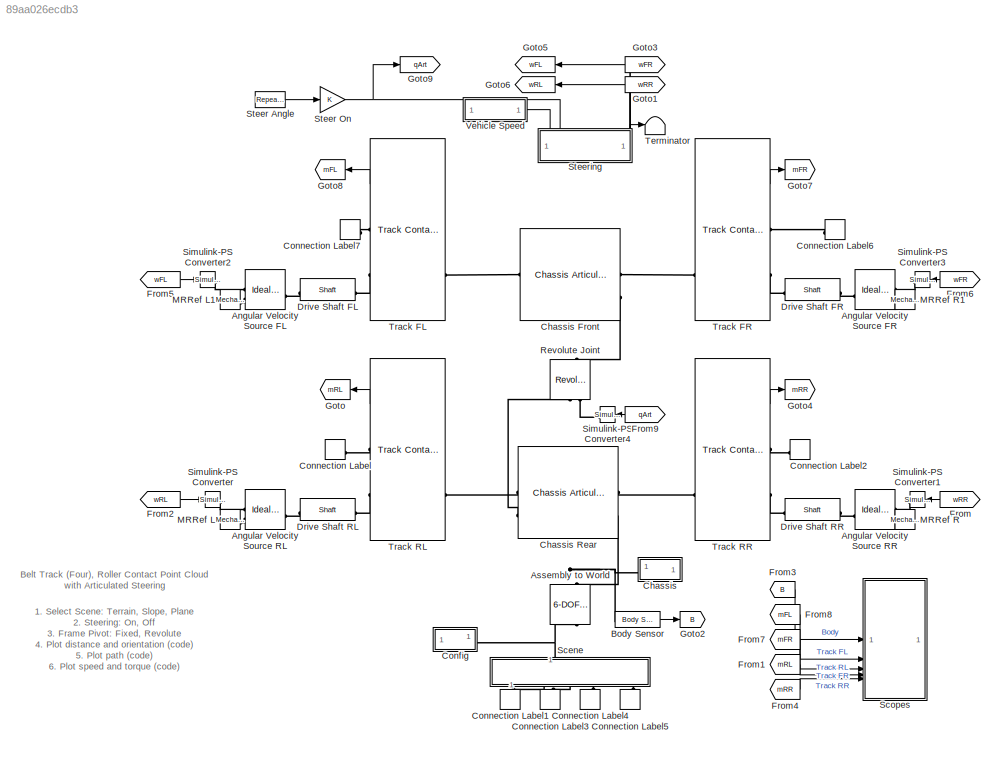
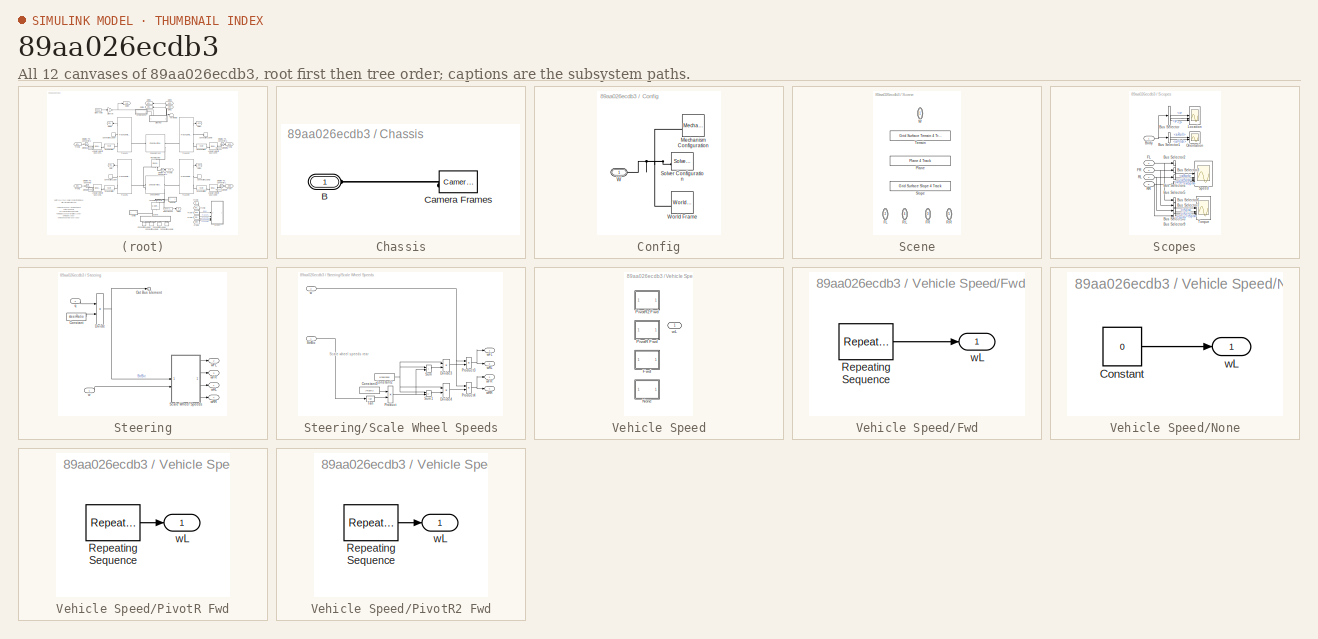
[diagram: thumbnail index - all 12 canvases of the model, root first then tree order]
MODEL slx_89aa026ecdb3
KIND model
CONFIG AbsTol = 1e-3
CONFIG EnableMultiTasking = on
CONFIG PostLoadFcn = set_param([bdroot '/Track FL'],'popup_sense_roller','Actuator Torque')\nset_param([bdroot '/Track FR'],'popup_sense_roller','Actuator Torque')\nset_param([bdroot '/Track RL'],'popup_sense_roller','Actuator Torque')\nset_param([bdroot '/Track RR'],'popup_sense_roller','Actuator Torque')
CONFIG SolverName = ode23t
CONFIG StartFcn = tic
CONFIG StopFcn = Elapsed_Sim_Time = toc;\ndisp(['Elapsed Sim Time = ' num2str(Elapsed_Sim_Time)]);
CONFIG StopTime = 14
BLOCK [Reference] Angular Velocity Source FL  REF=fl_lib/Mechanical/Mechanical Sources/Ideal Angular
Velocity Source
  SourceBlock = fl_lib/Mechanical/Mechanical Sources/Ideal Angular\nVelocity Source
  SourceType = Ideal Angular\nVelocity Source
BLOCK [Reference] Angular Velocity Source FR  REF=fl_lib/Mechanical/Mechanical Sources/Ideal Angular
Velocity Source
  SourceBlock = fl_lib/Mechanical/Mechanical Sources/Ideal Angular\nVelocity Source
  SourceType = Ideal Angular\nVelocity Source
BLOCK [Reference] Angular Velocity Source RL  REF=fl_lib/Mechanical/Mechanical Sources/Ideal Angular
Velocity Source
  NameLocation = top
  SourceBlock = fl_lib/Mechanical/Mechanical Sources/Ideal Angular\nVelocity Source
  SourceType = Ideal Angular\nVelocity Source
BLOCK [Reference] Angular Velocity Source RR  REF=fl_lib/Mechanical/Mechanical Sources/Ideal Angular
Velocity Source
  SourceBlock = fl_lib/Mechanical/Mechanical Sources/Ideal Angular\nVelocity Source
  SourceType = Ideal Angular\nVelocity Source
BLOCK [Reference] Assembly to World  REF=sm_lib/Joints/6-DOF Joint
  NameLocation = left
  SourceBlock = sm_lib/Joints/6-DOF Joint
  SourceType = 6-DOF Joint
BLOCK [Reference] Body Sensor  REF=sm_excv_chassis_lib/Body Sensor  (lib defined in slx_b1ec5a7399d3)
  SourceBlock = sm_excv_chassis_lib/Body Sensor
  SourceType = Measurements in Body Frame
BLOCK [SubSystem] Chassis
BLOCK [Reference] Chassis Front  REF=sm_excv_chassis_lib/Chassis Articulated Front  (lib defined in slx_b1ec5a7399d3)
  NameLocation = top
  SourceBlock = sm_excv_chassis_lib/Chassis Articulated Front
BLOCK [Reference] Chassis Rear  REF=sm_excv_chassis_lib/Chassis Articulated Rear  (lib defined in slx_b1ec5a7399d3)
  SourceBlock = sm_excv_chassis_lib/Chassis Articulated Rear
BLOCK [PMIOPort] Chassis/B
  Side = Left
BLOCK [Reference] Chassis/Camera Frames  REF=sm_excv_chassis_lib/Camera  (lib defined in slx_b1ec5a7399d3)
Frames
  SourceBlock = sm_excv_chassis_lib/Camera\nFrames
BLOCK [SubSystem] Config
BLOCK [Reference] Config/Mechanism Configuration  REF=sm_lib/Utilities/Mechanism
Configuration
  SourceBlock = sm_lib/Utilities/Mechanism\nConfiguration
  SourceType = Mechanism\nConfiguration
BLOCK [Reference] Config/Solver Configuration  REF=nesl_utility/Solver
Configuration
  SourceBlock = nesl_utility/Solver\nConfiguration
  SourceType = Solver\nConfiguration
BLOCK [PMIOPort] Config/W
  Side = Left
BLOCK [Reference] Config/World Frame  REF=sm_lib/Frames and
Transforms/World Frame
  SourceBlock = sm_lib/Frames and\nTransforms/World Frame
  SourceType = World Frame
BLOCK [ConnectionLabel] Connection Label
  Label = GFL
  NameLocation = top
BLOCK [ConnectionLabel] Connection Label1
  Label = GFL
  NameLocation = left
BLOCK [ConnectionLabel] Connection Label2
  Label = GFR
  NameLocation = top
BLOCK [ConnectionLabel] Connection Label3
  Label = GFR
  NameLocation = right
BLOCK [ConnectionLabel] Connection Label4
  Label = GRL
  NameLocation = left
BLOCK [ConnectionLabel] Connection Label5
  Label = GRR
  NameLocation = right
BLOCK [ConnectionLabel] Connection Label6
  Label = GRR
  NameLocation = top
BLOCK [ConnectionLabel] Connection Label7
  Label = GRL
  NameLocation = top
BLOCK [Reference] Drive Shaft FL  REF=sm_trackV_lib_chain_underc_elem/Shaft
  SourceBlock = sm_trackV_lib_chain_underc_elem/Shaft
  SourceType = Driveshaft
BLOCK [Reference] Drive Shaft FR  REF=sm_trackV_lib_chain_underc_elem/Shaft
  SourceBlock = sm_trackV_lib_chain_underc_elem/Shaft
  SourceType = Driveshaft
BLOCK [Reference] Drive Shaft RL  REF=sm_trackV_lib_chain_underc_elem/Shaft
  SourceBlock = sm_trackV_lib_chain_underc_elem/Shaft
  SourceType = Driveshaft
BLOCK [Reference] Drive Shaft RR  REF=sm_trackV_lib_chain_underc_elem/Shaft
  SourceBlock = sm_trackV_lib_chain_underc_elem/Shaft
  SourceType = Driveshaft
BLOCK [From] From
  GotoTag = wRR
BLOCK [From] From1
  GotoTag = mRL
BLOCK [From] From2
  GotoTag = wRL
  NameLocation = top
BLOCK [From] From3
  GotoTag = B
BLOCK [From] From4
  GotoTag = mRR
BLOCK [From] From5
  GotoTag = wFL
BLOCK [From] From6
  GotoTag = wFR
BLOCK [From] From7
  GotoTag = mFR
BLOCK [From] From8
  GotoTag = mFL
BLOCK [From] From9
  GotoTag = qArt
BLOCK [Goto] Goto
  GotoTag = mRL
BLOCK [Goto] Goto1
  GotoTag = wRR
BLOCK [Goto] Goto2
  GotoTag = B
BLOCK [Goto] Goto3
  GotoTag = wFR
BLOCK [Goto] Goto4
  GotoTag = mRR
BLOCK [Goto] Goto5
  GotoTag = wFL
BLOCK [Goto] Goto6
  GotoTag = wRL
BLOCK [Goto] Goto7
  GotoTag = mFR
BLOCK [Goto] Goto8
  GotoTag = mFL
BLOCK [Goto] Goto9
  GotoTag = qArt
BLOCK [Reference] MRRef L  REF=fl_lib/Mechanical/Rotational Elements/Mechanical
Rotational Reference
  SourceBlock = fl_lib/Mechanical/Rotational Elements/Mechanical\nRotational Reference
  SourceType = Mechanical\nRotational Reference
BLOCK [Reference] MRRef L1  REF=fl_lib/Mechanical/Rotational Elements/Mechanical
Rotational Reference
  SourceBlock = fl_lib/Mechanical/Rotational Elements/Mechanical\nRotational Reference
  SourceType = Mechanical\nRotational Reference
BLOCK [Reference] MRRef R  REF=fl_lib/Mechanical/Rotational Elements/Mechanical
Rotational Reference
  SourceBlock = fl_lib/Mechanical/Rotational Elements/Mechanical\nRotational Reference
  SourceType = Mechanical\nRotational Reference
BLOCK [Reference] MRRef R1  REF=fl_lib/Mechanical/Rotational Elements/Mechanical
Rotational Reference
  SourceBlock = fl_lib/Mechanical/Rotational Elements/Mechanical\nRotational Reference
  SourceType = Mechanical\nRotational Reference
BLOCK [Reference] Revolute Joint  REF=sm_lib/Joints/Revolute Joint
  NameLocation = right
  SourceBlock = sm_lib/Joints/Revolute Joint
  SourceType = Revolute Joint
BLOCK [SubSystem] Scene
  AttributesFormatString = %<LabelModeActiveChoice>
  LabelModeActiveChoice = Terrain
  NameLocation = right
  Variant = on
  VariantControl = Terrain
  VariantControlMode = label
BLOCK [PMIOPort] Scene/FL
  NameLocation = right
  Port = 2
  Side = Left
BLOCK [PMIOPort] Scene/FR
  NameLocation = right
  Port = 3
  Side = Left
BLOCK [Reference] Scene/Plane  REF=sm_rollerV_lib_terrain_contact_r5/Plane
4 Track
  NameLocation = right
  SourceBlock = sm_rollerV_lib_terrain_contact_r5/Plane\n4 Track
  SourceType = SubSystem
BLOCK [PMIOPort] Scene/RL
  NameLocation = right
  Port = 4
  Side = Left
BLOCK [PMIOPort] Scene/RR
  NameLocation = right
  Port = 5
  Side = Left
BLOCK [Reference] Scene/Slope  REF=sm_rollerV_lib_terrain_contact_r5/Grid Surface Slope
4 Track
  NameLocation = right
  SourceBlock = sm_rollerV_lib_terrain_contact_r5/Grid Surface Slope\n4 Track
BLOCK [Reference] Scene/Terrain  REF=sm_rollerV_lib_terrain_contact_r5/Grid Surface Terrain
4 Track
  NameLocation = right
  SourceBlock = sm_rollerV_lib_terrain_contact_r5/Grid Surface Terrain\n4 Track
  SourceType = SubSystem
BLOCK [PMIOPort] Scene/W
  NameLocation = right
  Side = Right
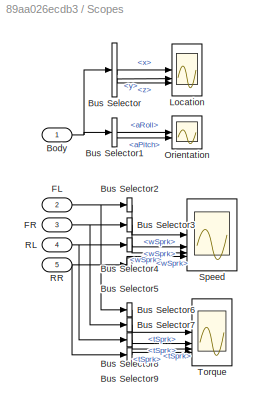
BLOCK [SubSystem] Scopes
BLOCK [Inport] Scopes/Body
BLOCK [BusSelector] Scopes/Bus Selector
  OutputSignals = x,y,z
BLOCK [BusSelector] Scopes/Bus Selector1
  OutputSignals = aRoll,aPitch
BLOCK [BusSelector] Scopes/Bus Selector2
  OutputSignals = Underc.wSprk
BLOCK [BusSelector] Scopes/Bus Selector3
  OutputSignals = Underc.wSprk
BLOCK [BusSelector] Scopes/Bus Selector4
  OutputSignals = Underc.wSprk
BLOCK [BusSelector] Scopes/Bus Selector5
  OutputSignals = Underc.wSprk
BLOCK [BusSelector] Scopes/Bus Selector6
  OutputSignals = Underc.tSprk
BLOCK [BusSelector] Scopes/Bus Selector7
  OutputSignals = Underc.tSprk
BLOCK [BusSelector] Scopes/Bus Selector8
  OutputSignals = Underc.tSprk
BLOCK [BusSelector] Scopes/Bus Selector9
  OutputSignals = Underc.tSprk
BLOCK [Inport] Scopes/FL
  NameLocation = left
  Port = 2
BLOCK [Inport] Scopes/FR
  NameLocation = left
  Port = 3
BLOCK [Scope] Scopes/Location
  ActiveDisplayYMaximum = 13.72233
  ActiveDisplayYMinimum = -2.438
  DataLoggingVariableName = ScopeData1
  Floating = off
  GraphicalSettings = {"GraphicalSettings":{"LegacySettings":true,"Style":{"Style":{"AxesColor":"[0 0 0]","ChannelNames":[""],"ColorOrder":"[1 1 0.0666666666666667;0.0745098039215686 0.623529411764706 1;1 0.411764705882353 0.16078431372549;0.392156862745098 0.831372549019608 0.0745098039215686;0.717647058823529 0.274509803921569 1;0.0588235294117647 1 1;1 0.0745098039215686 0.650980392156863]","CurrentConfiguration":"e...<+349ch>
  MultipleDisplayCache = [{"MaxYLimMag":13.72233,"MaxYLimReal":13.72233,"MinYLimMag":0,"MinYLimReal":-2.438,"PlotAsMagnitudePhase":false,"ShowGrid":true,"ShowLegend":false,"Title":"%<SignalLabel>","YLabel":""}]
  NumInputPorts = 3
  WasSavedAsWebScope = on
  WindowPosition = [946 567 560 420]
BLOCK [Scope] Scopes/Orientation
  ActiveDisplayYMaximum = 0.36121
  ActiveDisplayYMinimum = -0.40552
  DataLoggingVariableName = ScopeData2
  Floating = off
  GraphicalSettings = {"GraphicalSettings":{"LegacySettings":true,"Style":{"Style":{"AxesColor":"[0 0 0]","ChannelNames":[""],"ColorOrder":"[1 1 0.0666666666666667;0.0745098039215686 0.623529411764706 1;1 0.411764705882353 0.16078431372549;0.392156862745098 0.831372549019608 0.0745098039215686;0.717647058823529 0.274509803921569 1;0.0588235294117647 1 1;1 0.0745098039215686 0.650980392156863]","CurrentConfiguration":"e...<+346ch>
  MultipleDisplayCache = [{"MaxYLimMag":0.40552,"MaxYLimReal":0.36121,"MinYLimMag":0,"MinYLimReal":-0.40552,"PlotAsMagnitudePhase":false,"ShowGrid":true,"ShowLegend":true,"Title":"%<SignalLabel>","YLabel":""}]
  NumInputPorts = 2
  ShowLegend = on
  WasSavedAsWebScope = on
  WindowPosition = [1319 385 560 420]
BLOCK [Inport] Scopes/RL
  NameLocation = left
  Port = 4
BLOCK [Inport] Scopes/RR
  NameLocation = left
  Port = 5
BLOCK [Scope] Scopes/Speed
  ActiveDisplayYMaximum = 1.11207
  ActiveDisplayYMinimum = -0.59655
  Floating = off
  GraphicalSettings = {"GraphicalSettings":{"LegacySettings":true,"Style":{"Style":{"AxesColor":"[0 0 0]","ChannelNames":[""],"ColorOrder":"[1 1 0.0666666666666667;0.0745098039215686 0.623529411764706 1;1 0.411764705882353 0.16078431372549;0.392156862745098 0.831372549019608 0.0745098039215686;0.717647058823529 0.274509803921569 1;0.0588235294117647 1 1;1 0.0745098039215686 0.650980392156863]","CurrentConfiguration":"e...<+352ch>
  MultipleDisplayCache = [{"MaxYLimMag":1.11207,"MaxYLimReal":1.11207,"MinYLimMag":0,"MinYLimReal":-0.59655,"PlotAsMagnitudePhase":false,"ShowGrid":true,"ShowLegend":true,"Title":"%<SignalLabel>","YLabel":""}]
  NumInputPorts = 4
  ShowLegend = on
  WasSavedAsWebScope = on
  WindowPosition = [1299 350 560 412]
BLOCK [Scope] Scopes/Torque
  ActiveDisplayYMaximum = 6756.69226
  ActiveDisplayYMinimum = -13513.24622
  DataLoggingVariableName = ScopeData2
  Floating = off
  GraphicalSettings = {"GraphicalSettings":{"LegacySettings":true,"Style":{"Style":{"AxesColor":"[0 0 0]","ChannelNames":[""],"ColorOrder":"[1 1 0.0666666666666667;0.0745098039215686 0.623529411764706 1;1 0.411764705882353 0.16078431372549;0.392156862745098 0.831372549019608 0.0745098039215686;0.717647058823529 0.274509803921569 1;0.0588235294117647 1 1;1 0.0745098039215686 0.650980392156863]","CurrentConfiguration":"e...<+352ch>
  MultipleDisplayCache = [{"MaxYLimMag":13513.24622,"MaxYLimReal":6756.69226,"MinYLimMag":0,"MinYLimReal":-13513.24622,"PlotAsMagnitudePhase":false,"ShowGrid":true,"ShowLegend":false,"Title":"%<SignalLabel>","YLabel":""}]
  NumInputPorts = 4
  WasSavedAsWebScope = on
  WindowPosition = [1153 212 560 420]
BLOCK [Reference] Simulink-PS Converter  REF=nesl_utility/Simulink-PS
Converter
  SourceBlock = nesl_utility/Simulink-PS\nConverter
  SourceType = Simulink-PS\nConverter
BLOCK [Reference] Simulink-PS Converter1  REF=nesl_utility/Simulink-PS
Converter
  SourceBlock = nesl_utility/Simulink-PS\nConverter
  SourceType = Simulink-PS\nConverter
BLOCK [Reference] Simulink-PS Converter2  REF=nesl_utility/Simulink-PS
Converter
  NameLocation = top
  SourceBlock = nesl_utility/Simulink-PS\nConverter
  SourceType = Simulink-PS\nConverter
BLOCK [Reference] Simulink-PS Converter3  REF=nesl_utility/Simulink-PS
Converter
  NameLocation = top
  SourceBlock = nesl_utility/Simulink-PS\nConverter
  SourceType = Simulink-PS\nConverter
BLOCK [Reference] Simulink-PS Converter4  REF=nesl_utility/Simulink-PS
Converter
  NameLocation = top
  SourceBlock = nesl_utility/Simulink-PS\nConverter
  SourceType = Simulink-PS\nConverter
BLOCK [Reference] Steer Angle  REF=simulink/Sources/Repeating
Sequence
  SourceBlock = simulink/Sources/Repeating\nSequence
  SourceType = Repeating table
BLOCK [Gain] Steer On
BLOCK [SubSystem] Steering
  PortSchema = {"entries":[{"content":{"sides":[{"content":{},"type":"ConnectorPlacement.EquallySpacedRectSide","uuid":"65a6d75a-79bf-476b-9435-04bcf6c2ef18"},{"content":{"side":"RIGHT"},"type":"ConnectorPlacement.EquallySpacedRectSide","uuid":"4d91bb65-021e-4e19-8917-9509e9fd2683"},{"content":{"connectorIds":["In1","In2","Out1","Out2","Out3","Out4","Out5"],"side":"TOP"},"type":"ConnectorPlacement.EquallySpacedR...<+240ch>
BLOCK [Constant] Steering/Constant
  Value = steerRatio
BLOCK [Product] Steering/Divide
  Inputs = */
BLOCK [Outport] Steering/Out Bus Element
  Port = 5
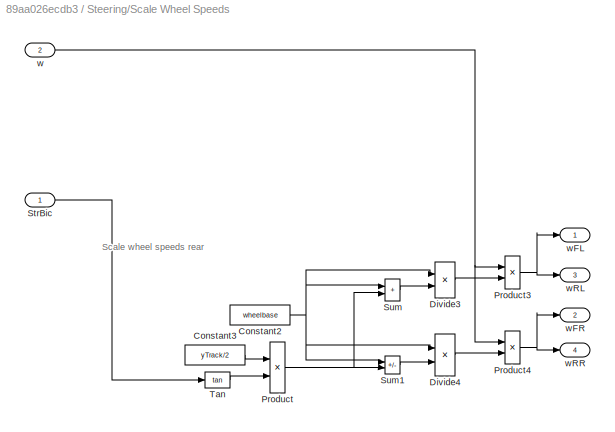
BLOCK [SubSystem] Steering/Scale Wheel Speeds
BLOCK [Constant] Steering/Scale Wheel Speeds/Constant2
  Value = wheelbase
BLOCK [Constant] Steering/Scale Wheel Speeds/Constant3
  Value = yTrack/2
BLOCK [Product] Steering/Scale Wheel Speeds/Divide3
  Inputs = */
BLOCK [Product] Steering/Scale Wheel Speeds/Divide4
  Inputs = */
BLOCK [Product] Steering/Scale Wheel Speeds/Product
BLOCK [Product] Steering/Scale Wheel Speeds/Product3
BLOCK [Product] Steering/Scale Wheel Speeds/Product4
BLOCK [Inport] Steering/Scale Wheel Speeds/StrBic
BLOCK [Sum] Steering/Scale Wheel Speeds/Sum
  IconShape = rectangular
BLOCK [Sum] Steering/Scale Wheel Speeds/Sum1
  IconShape = rectangular
  Inputs = +-
BLOCK [Trigonometry] Steering/Scale Wheel Speeds/Tan
  Operator = tan
BLOCK [Inport] Steering/Scale Wheel Speeds/w
  Port = 2
BLOCK [Outport] Steering/Scale Wheel Speeds/wFL
BLOCK [Outport] Steering/Scale Wheel Speeds/wFR
  Port = 2
BLOCK [Outport] Steering/Scale Wheel Speeds/wRL
  Port = 3
BLOCK [Outport] Steering/Scale Wheel Speeds/wRR
  Port = 4
BLOCK [Inport] Steering/q
  Port = 2
BLOCK [Inport] Steering/w
BLOCK [Outport] Steering/wFL
  Port = 2
BLOCK [Outport] Steering/wFR
  Port = 3
BLOCK [Outport] Steering/wRL
BLOCK [Outport] Steering/wRR
  Port = 4
BLOCK [Terminator] Terminator
  NameLocation = right
BLOCK [Reference] Track FL  REF=sm_rollerV_lib_lower_frame_idlerArm_i2u0l3/Track Contact Roller
  AttributesFormatString = %<popup_trackFrame>
  SourceBlock = sm_rollerV_lib_lower_frame_idlerArm_i2u0l3/Track Contact Roller
  SourceType = Lower Frame with Roller Point Cloud Contact Geometry
BLOCK [Reference] Track FR  REF=sm_rollerV_lib_lower_frame_idlerArm_i2u0l3/Track Contact Roller
  AttributesFormatString = %<popup_trackFrame>
  SourceBlock = sm_rollerV_lib_lower_frame_idlerArm_i2u0l3/Track Contact Roller
  SourceType = Lower Frame with Roller Point Cloud Contact Geometry
BLOCK [Reference] Track RL  REF=sm_rollerV_lib_lower_frame_idlerArm_i2u0l3/Track Contact Roller
  AttributesFormatString = %<popup_trackFrame>
  SourceBlock = sm_rollerV_lib_lower_frame_idlerArm_i2u0l3/Track Contact Roller
  SourceType = Lower Frame with Roller Point Cloud Contact Geometry
BLOCK [Reference] Track RR  REF=sm_rollerV_lib_lower_frame_idlerArm_i2u0l3/Track Contact Roller
  AttributesFormatString = %<popup_trackFrame>
  SourceBlock = sm_rollerV_lib_lower_frame_idlerArm_i2u0l3/Track Contact Roller
  SourceType = Lower Frame with Roller Point Cloud Contact Geometry
BLOCK [SubSystem] Vehicle Speed
  AttributesFormatString = %<LabelModeActiveChoice>
  LabelModeActiveChoice = Fwd
  Variant = on
  VariantControl = Choice
  VariantControlMode = label
BLOCK [SubSystem] Vehicle Speed/Fwd
  VariantControl = Fwd
BLOCK [Reference] Vehicle Speed/Fwd/Repeating Sequence  REF=simulink/Sources/Repeating
Sequence
  SourceBlock = simulink/Sources/Repeating\nSequence
  SourceType = Repeating table
BLOCK [Outport] Vehicle Speed/Fwd/wL
BLOCK [SubSystem] Vehicle Speed/None
  VariantControl = None
BLOCK [Constant] Vehicle Speed/None/Constant
  Value = 0
BLOCK [Outport] Vehicle Speed/None/wL
BLOCK [SubSystem] Vehicle Speed/PivotR Fwd
  VariantControl = PivotR_Fwd
BLOCK [Reference] Vehicle Speed/PivotR Fwd/Repeating Sequence  REF=simulink/Sources/Repeating
Sequence
  SourceBlock = simulink/Sources/Repeating\nSequence
  SourceType = Repeating table
BLOCK [Outport] Vehicle Speed/PivotR Fwd/wL
BLOCK [SubSystem] Vehicle Speed/PivotR2 Fwd
  VariantControl = PivotR2_Fwd
BLOCK [Reference] Vehicle Speed/PivotR2 Fwd/Repeating Sequence  REF=simulink/Sources/Repeating
Sequence
  SourceBlock = simulink/Sources/Repeating\nSequence
  SourceType = Repeating table
BLOCK [Outport] Vehicle Speed/PivotR2 Fwd/wL
BLOCK [Outport] Vehicle Speed/wL
ANNOTATION (root): 1. Select Scene: Terrain , Slope , Plane 2. Steering: On , Off 3. Frame Pivot: Fixed , Revolute 4. Plot distance and orientation ( code ) 5. Plot path ( code ) 6. Plot speed and torque ( code ) 7. Measure roller loads: On , Off Plot loads ( code ) 8. Contact geometry: Show , Hide ( code ) 9. Explore simulation results using sscexplore 10. Learn more about this example
ANNOTATION (root): Belt Track (Four), Roller Contact Point Cloud with Articulated Steering
ANNOTATION Steering/Scale Wheel Speeds: Scale wheel speeds rear
LINE Body Sensor:1 -> Goto2:1
LINE From1:1 -> Scopes:4
LINE From2:1 -> Simulink-PS Converter:1
LINE From3:1 -> Scopes:1
LINE From4:1 -> Scopes:5
LINE From5:1 -> Simulink-PS Converter2:1
LINE From6:1 -> Simulink-PS Converter3:1
LINE From7:1 -> Scopes:3
LINE From8:1 -> Scopes:2
LINE From9:1 -> Simulink-PS Converter4:1
LINE From:1 -> Simulink-PS Converter1:1
NET Scopes/Body:1 -> Scopes/Bus Selector1:1, Scopes/Bus Selector:1
LINE Scopes/Bus Selector1:1 -> Scopes/Orientation:1
LINE Scopes/Bus Selector1:2 -> Scopes/Orientation:2
LINE Scopes/Bus Selector2:1 -> Scopes/Speed:1
LINE Scopes/Bus Selector3:1 -> Scopes/Speed:2
LINE Scopes/Bus Selector4:1 -> Scopes/Speed:3
LINE Scopes/Bus Selector5:1 -> Scopes/Speed:4
LINE Scopes/Bus Selector6:1 -> Scopes/Torque:1
LINE Scopes/Bus Selector7:1 -> Scopes/Torque:2
LINE Scopes/Bus Selector8:1 -> Scopes/Torque:3
LINE Scopes/Bus Selector9:1 -> Scopes/Torque:4
LINE Scopes/Bus Selector:1 -> Scopes/Location:1
LINE Scopes/Bus Selector:2 -> Scopes/Location:2
LINE Scopes/Bus Selector:3 -> Scopes/Location:3
NET Scopes/FL:1 -> Scopes/Bus Selector2:1, Scopes/Bus Selector6:1
NET Scopes/FR:1 -> Scopes/Bus Selector3:1, Scopes/Bus Selector7:1
NET Scopes/RL:1 -> Scopes/Bus Selector4:1, Scopes/Bus Selector8:1
NET Scopes/RR:1 -> Scopes/Bus Selector5:1, Scopes/Bus Selector9:1
LINE Steer Angle:1 -> Steer On:1
NET Steer On:1 -> Goto9:1, Steering:2
LINE Steering/Constant:1 -> Steering/Divide:2
NET Steering/Divide:1 -> Steering/Out Bus Element:1, Steering/Scale Wheel Speeds:1
NET Steering/Scale Wheel Speeds/Constant2:1 -> Steering/Scale Wheel Speeds/Divide3:1, Steering/Scale Wheel Speeds/Divide4:1, Steering/Scale Wheel Speeds/Sum1:1, Steering/Scale Wheel Speeds/Sum:1
LINE Steering/Scale Wheel Speeds/Constant3:1 -> Steering/Scale Wheel Speeds/Product:1
LINE Steering/Scale Wheel Speeds/Divide3:1 -> Steering/Scale Wheel Speeds/Product3:2
LINE Steering/Scale Wheel Speeds/Divide4:1 -> Steering/Scale Wheel Speeds/Product4:2
NET Steering/Scale Wheel Speeds/Product3:1 -> Steering/Scale Wheel Speeds/wFL:1, Steering/Scale Wheel Speeds/wRL:1
NET Steering/Scale Wheel Speeds/Product4:1 -> Steering/Scale Wheel Speeds/wFR:1, Steering/Scale Wheel Speeds/wRR:1
NET Steering/Scale Wheel Speeds/Product:1 -> Steering/Scale Wheel Speeds/Sum1:2, Steering/Scale Wheel Speeds/Sum:2
LINE Steering/Scale Wheel Speeds/StrBic:1 -> Steering/Scale Wheel Speeds/Tan:1
LINE Steering/Scale Wheel Speeds/Sum1:1 -> Steering/Scale Wheel Speeds/Divide4:2
LINE Steering/Scale Wheel Speeds/Sum:1 -> Steering/Scale Wheel Speeds/Divide3:2
LINE Steering/Scale Wheel Speeds/Tan:1 -> Steering/Scale Wheel Speeds/Product:2
NET Steering/Scale Wheel Speeds/w:1 -> Steering/Scale Wheel Speeds/Product3:1, Steering/Scale Wheel Speeds/Product4:1
LINE Steering/Scale Wheel Speeds:1 -> Steering/wFL:1
LINE Steering/Scale Wheel Speeds:2 -> Steering/wFR:1
LINE Steering/Scale Wheel Speeds:3 -> Steering/wRL:1
LINE Steering/Scale Wheel Speeds:4 -> Steering/wRR:1
LINE Steering/q:1 -> Steering/Divide:1
LINE Steering/w:1 -> Steering/Scale Wheel Speeds:2
LINE Steering:1 -> Goto6:1
LINE Steering:2 -> Goto5:1
LINE Steering:3 -> Goto3:1
LINE Steering:4 -> Goto1:1
LINE Steering:5 -> Terminator:1
LINE Track FL:1 -> Goto8:1
LINE Track FR:1 -> Goto7:1
LINE Track RL:1 -> Goto:1
LINE Track RR:1 -> Goto4:1
LINE Vehicle Speed/Fwd/Repeating Sequence:1 -> Vehicle Speed/Fwd/wL:1
LINE Vehicle Speed/None/Constant:1 -> Vehicle Speed/None/wL:1
LINE Vehicle Speed/PivotR Fwd/Repeating Sequence:1 -> Vehicle Speed/PivotR Fwd/wL:1
LINE Vehicle Speed/PivotR2 Fwd/Repeating Sequence:1 -> Vehicle Speed/PivotR2 Fwd/wL:1
LINE Vehicle Speed:1 -> Steering:1
PLINE Angular Velocity Source FL:LConn1 -- Drive Shaft FL:LConn1
PLINE Angular Velocity Source FL:RConn1 -- Simulink-PS Converter2:RConn1
PLINE Angular Velocity Source FL:RConn2 -- MRRef L1:LConn1
PLINE Angular Velocity Source FR:LConn1 -- Drive Shaft FR:LConn1
PLINE Angular Velocity Source FR:RConn1 -- Simulink-PS Converter3:RConn1
PLINE Angular Velocity Source FR:RConn2 -- MRRef R1:LConn1
PLINE Angular Velocity Source RL:LConn1 -- Drive Shaft RL:LConn1
PLINE Angular Velocity Source RL:RConn1 -- Simulink-PS Converter:RConn1
PLINE Angular Velocity Source RL:RConn2 -- MRRef L:LConn1
PLINE Angular Velocity Source RR:LConn1 -- Drive Shaft RR:LConn1
PLINE Angular Velocity Source RR:RConn1 -- Simulink-PS Converter1:RConn1
PLINE Angular Velocity Source RR:RConn2 -- MRRef R:LConn1
PNET net1: Assembly to World:LConn1 -- Config:LConn1 -- Scene:RConn1
PNET net2: Assembly to World:RConn1 -- Body Sensor:LConn1 -- Chassis Rear:RConn2 -- Chassis:LConn1
PLINE Chassis Front:LConn1 -- Track FL:LConn2
PLINE Chassis Front:RConn1 -- Track FR:LConn2
PLINE Chassis Front:RConn2 -- Revolute Joint:RConn1
PLINE Chassis Rear:LConn1 -- Track RL:LConn2
PLINE Chassis Rear:LConn2 -- Revolute Joint:LConn1
PLINE Chassis Rear:RConn1 -- Track RR:LConn2
PLINE Chassis/B:RConn1 -- Chassis/Camera Frames:LConn1
PNET net3: Config/Mechanism Configuration:RConn1 -- Config/Solver Configuration:RConn1 -- Config/W:RConn1 -- Config/World Frame:RConn1
PLINE Connection Label1:LConn1 -- Scene:LConn1
PLINE Connection Label2:LConn1 -- Track RR:RConn1
PLINE Connection Label3:LConn1 -- Scene:LConn2
PLINE Connection Label4:LConn1 -- Scene:LConn3
PLINE Connection Label5:LConn1 -- Scene:LConn4
PLINE Connection Label6:LConn1 -- Track FR:RConn1
PLINE Connection Label7:LConn1 -- Track FL:RConn1
PLINE Connection Label:LConn1 -- Track RL:RConn1
PLINE Drive Shaft FL:RConn1 -- Track FL:RConn2
PLINE Drive Shaft FR:RConn1 -- Track FR:RConn2
PLINE Drive Shaft RL:RConn1 -- Track RL:RConn2
PLINE Drive Shaft RR:RConn1 -- Track RR:RConn2
PLINE Revolute Joint:LConn2 -- Simulink-PS Converter4:RConn1
note: NET lines group one-source signal fan-out (src -> all destinations, sorted); 1:1 wires keep LINE; PNET lines group multi-terminal physical nets as a canonical sorted terminal list (undirected conserving connections); 2-terminal nets keep the pairwise PLINE form
